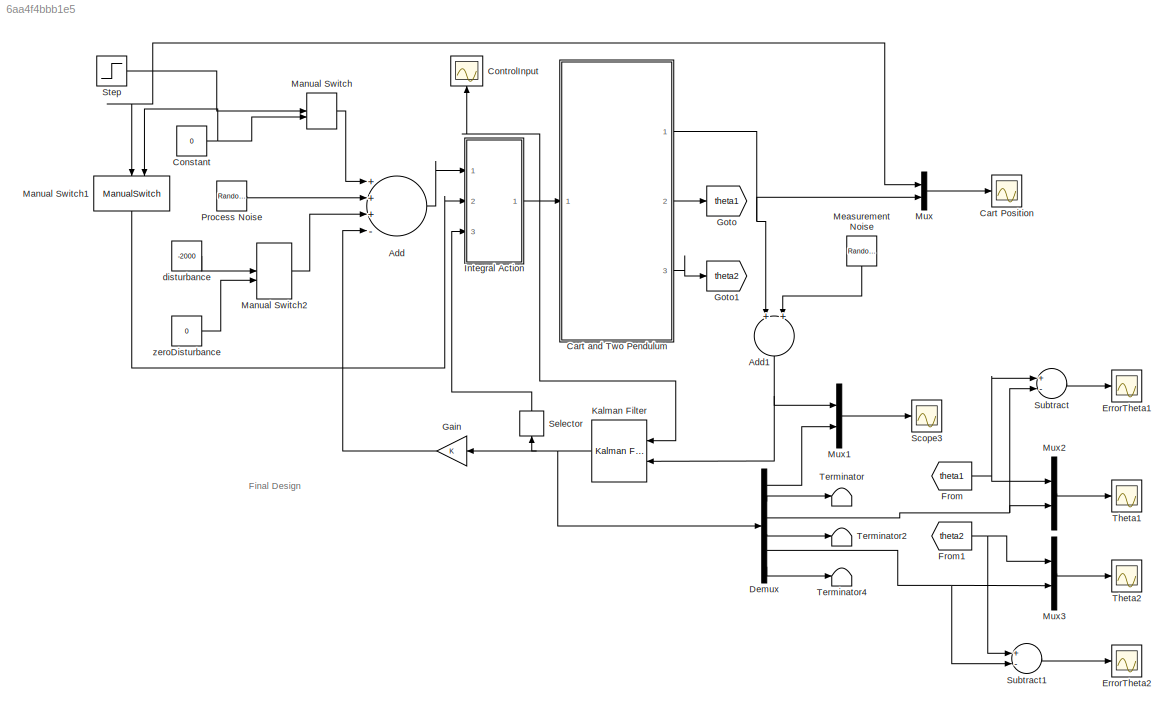
MODEL slx_6aa4f4bbb1e5
KIND model
CONFIG AbsTol = auto
CONFIG FixedStep = auto
CONFIG MaxStep = auto
CONFIG MinStep = auto
CONFIG RelTol = 1e-3
CONFIG SampleTimeConstraint = Unconstrained
CONFIG Solver = VariableStepAuto
CONFIG SolverMode = Auto
CONFIG SolverName = VariableStepAuto
CONFIG StartTime = 0.0
CONFIG StopTime = 50
BLOCK [Sum] Add
  InputSameDT = off
  Inputs = +++-
  OutDataTypeStr = Inherit: Inherit via internal rule
  Ports = [4, 1]
  SaturateOnIntegerOverflow = off
BLOCK [Sum] Add1
  InputSameDT = off
  OutDataTypeStr = Inherit: Inherit via internal rule
  Ports = [2, 1]
  SaturateOnIntegerOverflow = off
BLOCK [Scope] Cart Position
  Ports = [1]
  ScopeSpecificationString = Simulink.scopes.TimeScopeBlockCfg('CurrentConfiguration', extmgr.ConfigurationSet(extmgr.Configuration('Core','General UI',true,'FigureColor',[1 1 1]),extmgr.Configuration('Core','Source UI',true),extmgr.Configuration('Sources','WiredSimulink',true),extmgr.Configuration('Visuals','Time Domain',true,'SerializedDisplays',{struct('MinYLimReal','-4.02329','MaxYLimReal','12.29373','YLabelReal','Cart-Po...<+1677ch>
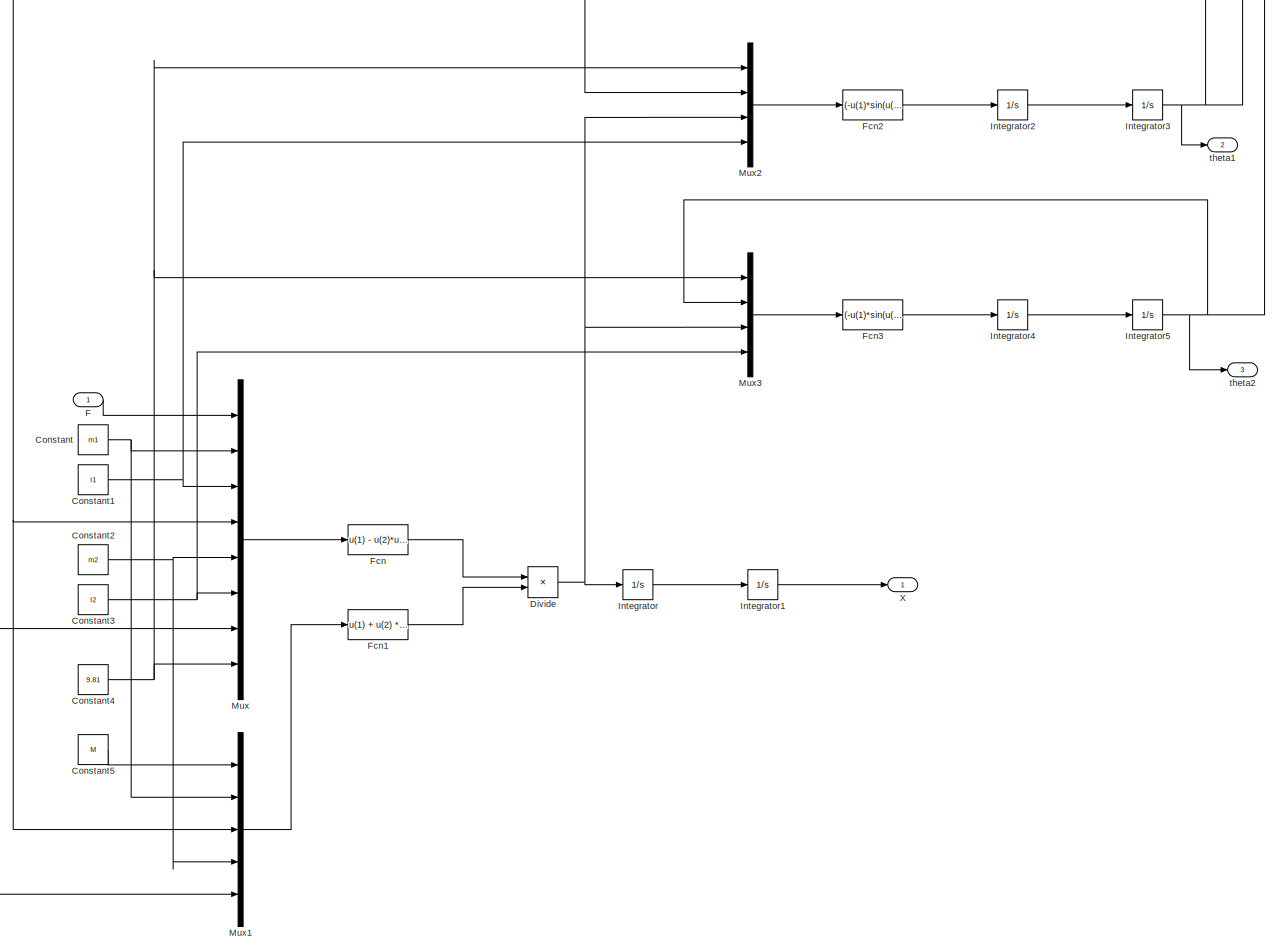
[diagram: Cart and Two Pendulum  - part 1/1, most of the canvas]
BLOCK [SubSystem] Cart and Two Pendulum 
  Ports = [1, 3]
  RequestExecContextInheritance = off
  Variant = off
BLOCK [Constant] Cart and Two Pendulum /Constant
  Value = m1
BLOCK [Constant] Cart and Two Pendulum /Constant1
  Value = l1
BLOCK [Constant] Cart and Two Pendulum /Constant2
  Value = m2
BLOCK [Constant] Cart and Two Pendulum /Constant3
  Value = l2
BLOCK [Constant] Cart and Two Pendulum /Constant4
  Value = 9.81
BLOCK [Constant] Cart and Two Pendulum /Constant5
  Value = M
BLOCK [Product] Cart and Two Pendulum /Divide
  InputSameDT = off
  Inputs = */
  OutDataTypeStr = Inherit: Inherit via internal rule
  Ports = [2, 1]
  RndMeth = Floor
  SaturateOnIntegerOverflow = off
BLOCK [Inport] Cart and Two Pendulum /F
  IconDisplay = Port number
BLOCK [Fcn] Cart and Two Pendulum /Fcn
  Expr = u(1) - u(2)*u(3)*(u(4)^2)*sin(u(4)) - u(5) * u(6) * (u(7)^2)*sin(u(7))-u(2)*u(8)*sin(u(4))*cos(u(4)) - u(5) * u(8) * sin(u(7)) * cos(u(7))
BLOCK [Fcn] Cart and Two Pendulum /Fcn1
  Expr = u(1) + u(2) * (sin(u(3)))^2 + u(4) * (sin(u(5)))^2
BLOCK [Fcn] Cart and Two Pendulum /Fcn2
  Expr = (-u(1)*sin(u(2)) + cos(u(2)) * u(3)) / u(4)
BLOCK [Fcn] Cart and Two Pendulum /Fcn3
  Expr = (-u(1)*sin(u(2)) + cos(u(2)) * u(3)) / u(4)
BLOCK [Integrator] Cart and Two Pendulum /Integrator
  Ports = [1, 1]
BLOCK [Integrator] Cart and Two Pendulum /Integrator1
  InitialCondition = X0(1)
  Ports = [1, 1]
BLOCK [Integrator] Cart and Two Pendulum /Integrator2
  Ports = [1, 1]
BLOCK [Integrator] Cart and Two Pendulum /Integrator3
  InitialCondition = X0(3)
  Ports = [1, 1]
BLOCK [Integrator] Cart and Two Pendulum /Integrator4
  Ports = [1, 1]
BLOCK [Integrator] Cart and Two Pendulum /Integrator5
  InitialCondition = X0(5)
  Ports = [1, 1]
BLOCK [Mux] Cart and Two Pendulum /Mux
  DisplayOption = bar
  Inputs = 8
  Ports = [8, 1]
BLOCK [Mux] Cart and Two Pendulum /Mux1
  DisplayOption = bar
  Inputs = 5
  Ports = [5, 1]
BLOCK [Mux] Cart and Two Pendulum /Mux2
  DisplayOption = bar
  Ports = [4, 1]
BLOCK [Mux] Cart and Two Pendulum /Mux3
  DisplayOption = bar
  Ports = [4, 1]
BLOCK [Outport] Cart and Two Pendulum /X
  IconDisplay = Port number
BLOCK [Outport] Cart and Two Pendulum /theta1
  IconDisplay = Port number
  Port = 2
BLOCK [Outport] Cart and Two Pendulum /theta2
  IconDisplay = Port number
  Port = 3
BLOCK [Constant] Constant
  Value = 0
BLOCK [Scope] ControlInput
  Ports = [1]
  ScopeSpecificationString = Simulink.scopes.TimeScopeBlockCfg('CurrentConfiguration', extmgr.ConfigurationSet(extmgr.Configuration('Core','General UI',true),extmgr.Configuration('Core','Source UI',true),extmgr.Configuration('Sources','WiredSimulink',true,'DataLoggingVariableName','ScopeData1'),extmgr.Configuration('Visuals','Time Domain',true,'SerializedDisplays',{struct('MinYLimReal','-108126.8467','MaxYLimReal','35963.4110...<+1433ch>
BLOCK [Demux] Demux
  DisplayOption = bar
  Outputs = 6
  Ports = [1, 6]
BLOCK [Scope] ErrorTheta1
  Ports = [1]
  ScopeSpecificationString = Simulink.scopes.TimeScopeBlockCfg('CurrentConfiguration', extmgr.ConfigurationSet(extmgr.Configuration('Core','General UI',true),extmgr.Configuration('Core','Source UI',true),extmgr.Configuration('Sources','WiredSimulink',true,'DataLoggingVariableName','ScopeData4'),extmgr.Configuration('Visuals','Time Domain',true,'SerializedDisplays',{struct('MinYLimReal','-0.01177','MaxYLimReal','0.01185','YLab...<+1367ch>
BLOCK [Scope] ErrorTheta2
  Ports = [1]
  ScopeSpecificationString = Simulink.scopes.TimeScopeBlockCfg('CurrentConfiguration', extmgr.ConfigurationSet(extmgr.Configuration('Core','General UI',true),extmgr.Configuration('Core','Source UI',true),extmgr.Configuration('Sources','WiredSimulink',true,'DataLoggingVariableName','ScopeData5'),extmgr.Configuration('Visuals','Time Domain',true,'SerializedDisplays',{struct('MinYLimReal','-0.01862','MaxYLimReal','0.01815','YLab...<+1368ch>
BLOCK [From] From
  GotoTag = theta1
BLOCK [From] From1
  GotoTag = theta2
BLOCK [Gain] Gain
  Gain = K
  Multiplication = Matrix(K*u)
  OutDataTypeStr = Inherit: Inherit via internal rule
  ParamDataTypeStr = Inherit: Inherit via internal rule
  SaturateOnIntegerOverflow = off
BLOCK [Goto] Goto
  GotoTag = theta1
BLOCK [Goto] Goto1
  GotoTag = theta2
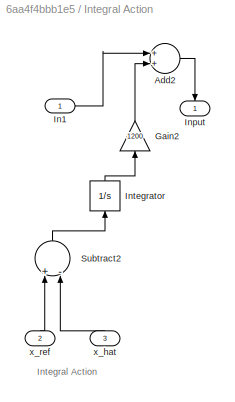
BLOCK [SubSystem] Integral Action
  Ports = [3, 1]
  RequestExecContextInheritance = off
  Variant = off
BLOCK [Sum] Integral Action/Add2
  InputSameDT = off
  OutDataTypeStr = Inherit: Inherit via internal rule
  Ports = [2, 1]
  SaturateOnIntegerOverflow = off
BLOCK [Gain] Integral Action/Gain2
  Gain = 1200
  OutDataTypeStr = Inherit: Inherit via internal rule
  ParamDataTypeStr = Inherit: Inherit via internal rule
  SaturateOnIntegerOverflow = off
BLOCK [Inport] Integral Action/In1
  IconDisplay = Port number
BLOCK [Outport] Integral Action/Input
  IconDisplay = Port number
BLOCK [Integrator] Integral Action/Integrator
  Ports = [1, 1]
BLOCK [Sum] Integral Action/Subtract2
  InputSameDT = off
  Inputs = +-
  OutDataTypeStr = Inherit: Inherit via internal rule
  Ports = [2, 1]
  SaturateOnIntegerOverflow = off
BLOCK [Inport] Integral Action/x_hat
  IconDisplay = Port number
  Port = 3
BLOCK [Inport] Integral Action/x_ref
  IconDisplay = Port number
  Port = 2
BLOCK [Reference] Kalman Filter  REF=ctrlSharedLib/Kalman Filter
  Ports = [2, 1]
  SourceBlock = ctrlSharedLib/Kalman Filter
  SourceType = ctrlKalmanFilter
BLOCK [ManualSwitch] Manual Switch
BLOCK [ManualSwitch] Manual Switch1
BLOCK [ManualSwitch] Manual Switch2
BLOCK [RandomNumber] Measurement Noise
  SampleTime = 0.1
  Variance = 0.001
BLOCK [Mux] Mux
  DisplayOption = bar
  Inputs = 2
  Ports = [2, 1]
BLOCK [Mux] Mux1
  DisplayOption = bar
  Inputs = 2
  Ports = [2, 1]
BLOCK [Mux] Mux2
  DisplayOption = bar
  Inputs = 2
  Ports = [2, 1]
BLOCK [Mux] Mux3
  DisplayOption = bar
  Inputs = 2
  Ports = [2, 1]
BLOCK [RandomNumber] Process Noise
  SampleTime = 0.1
  Variance = 0.2
BLOCK [Scope] Scope3
  Ports = [1]
  ScopeSpecificationString = Simulink.scopes.TimeScopeBlockCfg('CurrentConfiguration', extmgr.ConfigurationSet(extmgr.Configuration('Core','General UI',true),extmgr.Configuration('Core','Source UI',true),extmgr.Configuration('Sources','WiredSimulink',true,'DataLoggingVariableName','ScopeData1'),extmgr.Configuration('Visuals','Time Domain',true,'SerializedDisplays',{struct('MinYLimReal','-4158.89855','MaxYLimReal','2822.64902'...<+1442ch>
BLOCK [Selector] Selector
  IndexOptions = Index vector (dialog)
  Indices = [1]
  InputPortWidth = 6
  OutputSizes = 1
  Ports = [1, 1]
BLOCK [Step] Step
  After = 10
  SampleTime = 0
BLOCK [Sum] Subtract
  InputSameDT = off
  Inputs = +-
  OutDataTypeStr = Inherit: Inherit via internal rule
  Ports = [2, 1]
  SaturateOnIntegerOverflow = off
BLOCK [Sum] Subtract1
  InputSameDT = off
  Inputs = +-
  OutDataTypeStr = Inherit: Inherit via internal rule
  Ports = [2, 1]
  SaturateOnIntegerOverflow = off
BLOCK [Terminator] Terminator
BLOCK [Terminator] Terminator2
BLOCK [Terminator] Terminator4
BLOCK [Scope] Theta1
  Ports = [1]
  ScopeSpecificationString = Simulink.scopes.TimeScopeBlockCfg('CurrentConfiguration', extmgr.ConfigurationSet(extmgr.Configuration('Core','General UI',true,'FigureColor',[1 1 1]),extmgr.Configuration('Core','Source UI',true),extmgr.Configuration('Sources','WiredSimulink',true,'DataLoggingVariableName','ScopeData2'),extmgr.Configuration('Visuals','Time Domain',true,'SerializedDisplays',{struct('MinYLimReal','-0.07044','MaxYLi...<+1720ch>
BLOCK [Scope] Theta2
  Ports = [1]
  ScopeSpecificationString = Simulink.scopes.TimeScopeBlockCfg('CurrentConfiguration', extmgr.ConfigurationSet(extmgr.Configuration('Core','General UI',true,'FigureColor',[1 1 1]),extmgr.Configuration('Core','Source UI',true),extmgr.Configuration('Sources','WiredSimulink',true,'DataLoggingVariableName','ScopeData3'),extmgr.Configuration('Visuals','Time Domain',true,'SerializedDisplays',{struct('MinYLimReal','-0.13436','MaxYLi...<+1714ch>
BLOCK [Constant] disturbance
  Value = -2000
BLOCK [Constant] zeroDisturbance
  Value = 0
ANNOTATION (root): Final Design
ANNOTATION Integral Action: Integral Action
NET Add1:1 -> Kalman Filter:2, Mux1:1
LINE Add:1 -> Integral Action:1
NET Cart and Two Pendulum /Constant1:1 -> Cart and Two Pendulum /Mux2:4, Cart and Two Pendulum /Mux:3
NET Cart and Two Pendulum /Constant2:1 -> Cart and Two Pendulum /Mux1:4, Cart and Two Pendulum /Mux:5
NET Cart and Two Pendulum /Constant3:1 -> Cart and Two Pendulum /Mux3:4, Cart and Two Pendulum /Mux:6
NET Cart and Two Pendulum /Constant4:1 -> Cart and Two Pendulum /Mux2:1, Cart and Two Pendulum /Mux3:1, Cart and Two Pendulum /Mux:8
LINE Cart and Two Pendulum /Constant5:1 -> Cart and Two Pendulum /Mux1:1
NET Cart and Two Pendulum /Constant:1 -> Cart and Two Pendulum /Mux1:2, Cart and Two Pendulum /Mux:2
NET Cart and Two Pendulum /Divide:1 -> Cart and Two Pendulum /Integrator:1, Cart and Two Pendulum /Mux2:3, Cart and Two Pendulum /Mux3:3
LINE Cart and Two Pendulum /F:1 -> Cart and Two Pendulum /Mux:1
LINE Cart and Two Pendulum /Fcn1:1 -> Cart and Two Pendulum /Divide:2
LINE Cart and Two Pendulum /Fcn2:1 -> Cart and Two Pendulum /Integrator2:1
LINE Cart and Two Pendulum /Fcn3:1 -> Cart and Two Pendulum /Integrator4:1
LINE Cart and Two Pendulum /Fcn:1 -> Cart and Two Pendulum /Divide:1
LINE Cart and Two Pendulum /Integrator1:1 -> Cart and Two Pendulum /X:1
LINE Cart and Two Pendulum /Integrator2:1 -> Cart and Two Pendulum /Integrator3:1
NET Cart and Two Pendulum /Integrator3:1 -> Cart and Two Pendulum /Mux1:3, Cart and Two Pendulum /Mux2:2, Cart and Two Pendulum /Mux:4, Cart and Two Pendulum /theta1:1
LINE Cart and Two Pendulum /Integrator4:1 -> Cart and Two Pendulum /Integrator5:1
NET Cart and Two Pendulum /Integrator5:1 -> Cart and Two Pendulum /Mux1:5, Cart and Two Pendulum /Mux3:2, Cart and Two Pendulum /Mux:7, Cart and Two Pendulum /theta2:1
LINE Cart and Two Pendulum /Integrator:1 -> Cart and Two Pendulum /Integrator1:1
LINE Cart and Two Pendulum /Mux1:1 -> Cart and Two Pendulum /Fcn1:1
LINE Cart and Two Pendulum /Mux2:1 -> Cart and Two Pendulum /Fcn2:1
LINE Cart and Two Pendulum /Mux3:1 -> Cart and Two Pendulum /Fcn3:1
LINE Cart and Two Pendulum /Mux:1 -> Cart and Two Pendulum /Fcn:1
NET Cart and Two Pendulum :1 -> Add1:1, Mux:2
LINE Cart and Two Pendulum :2 -> Goto:1
LINE Cart and Two Pendulum :3 -> Goto1:1
NET Constant:1 -> Manual Switch1:2, Manual Switch:2
LINE Demux:1 -> Mux1:2
LINE Demux:2 -> Terminator:1
NET Demux:3 -> Mux2:2, Subtract:2
LINE Demux:4 -> Terminator2:1
NET Demux:5 -> Mux3:2, Subtract1:2
LINE Demux:6 -> Terminator4:1
NET From1:1 -> Mux3:1, Subtract1:1
NET From:1 -> Mux2:1, Subtract:1
LINE Gain:1 -> Add:4
LINE Integral Action/Add2:1 -> Integral Action/Input:1
LINE Integral Action/Gain2:1 -> Integral Action/Add2:2
LINE Integral Action/In1:1 -> Integral Action/Add2:1
LINE Integral Action/Integrator:1 -> Integral Action/Gain2:1
LINE Integral Action/Subtract2:1 -> Integral Action/Integrator:1
LINE Integral Action/x_hat:1 -> Integral Action/Subtract2:2
LINE Integral Action/x_ref:1 -> Integral Action/Subtract2:1
NET Integral Action:1 -> Cart and Two Pendulum :1, ControlInput:1, Kalman Filter:1
NET Kalman Filter:1 -> Demux:1, Gain:1, Selector:1
LINE Manual Switch1:1 -> Integral Action:2
LINE Manual Switch2:1 -> Add:3
LINE Manual Switch:1 -> Add:1
LINE Measurement Noise:1 -> Add1:2
LINE Mux1:1 -> Scope3:1
LINE Mux2:1 -> Theta1:1
LINE Mux3:1 -> Theta2:1
LINE Mux:1 -> Cart Position:1
LINE Process Noise:1 -> Add:2
LINE Selector:1 -> Integral Action:3
NET Step:1 -> Manual Switch1:1, Manual Switch:1, Mux:1
LINE Subtract1:1 -> ErrorTheta2:1
LINE Subtract:1 -> ErrorTheta1:1
LINE disturbance:1 -> Manual Switch2:1
LINE zeroDisturbance:1 -> Manual Switch2:2
note: NET lines group one-source signal fan-out (src -> all destinations, sorted); 1:1 wires keep LINE
